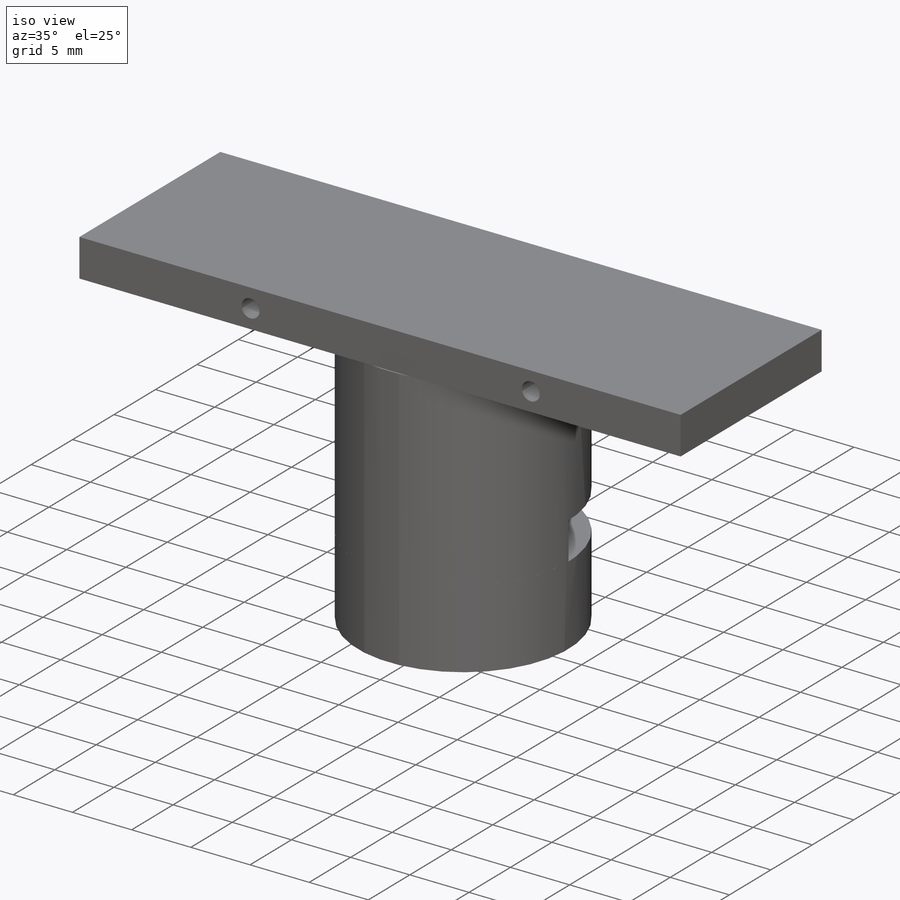
[diagram: iso view]
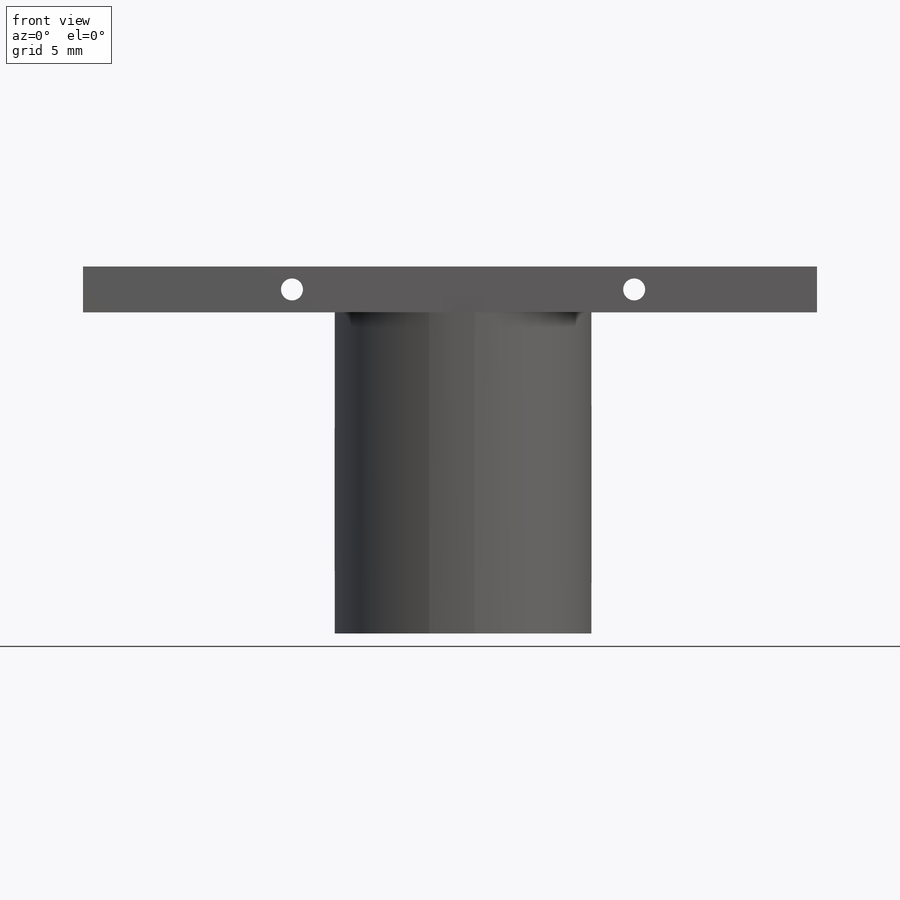
[diagram: front view]
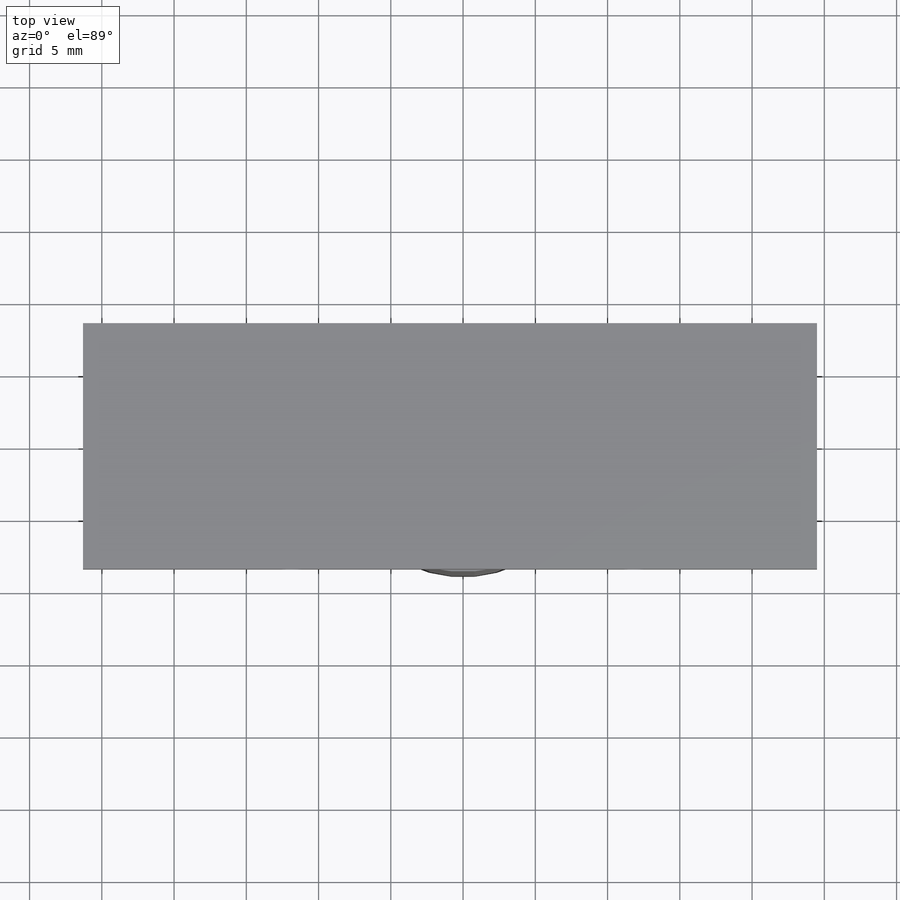
[diagram: top view]
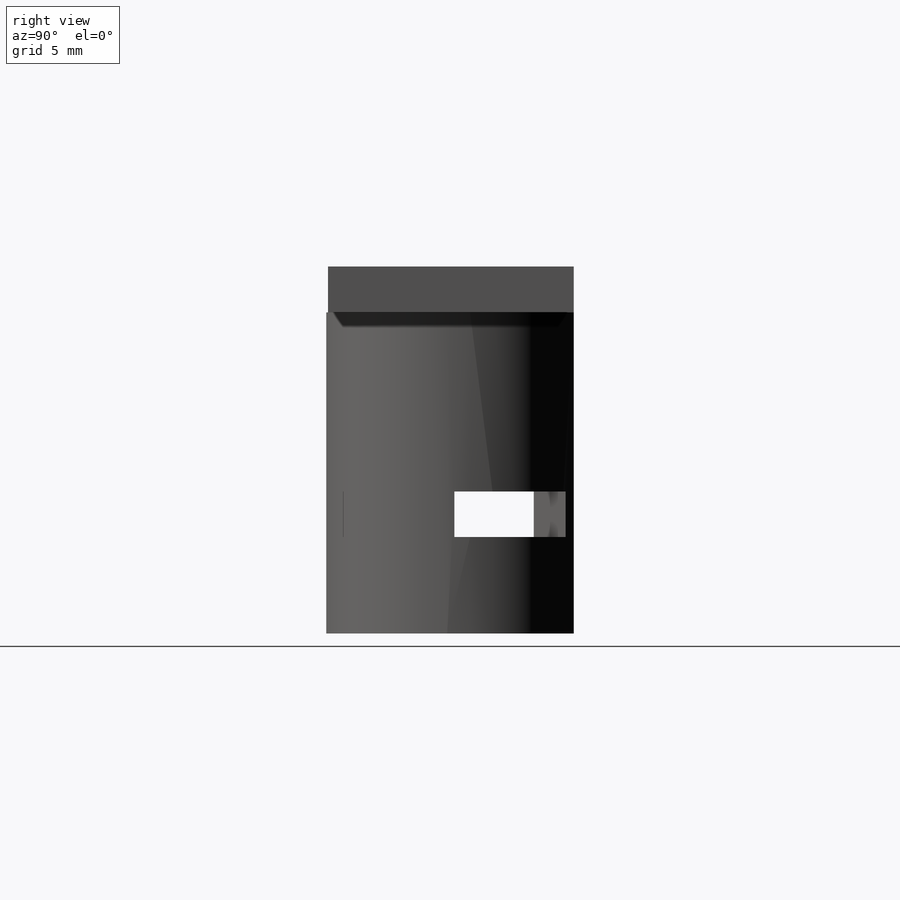
[diagram: right view]
SOLIDWORKS PART (.sldprt)
format: sldprt  version: not decoded by parser v0  size: 222,208 bytes
history: native  units: mm
features: sketch x6, extrude x3, cut_extrude x2, material x1, shell x1, plane x1, cut_revolve x1 (+12 scaffold rows collapsed)
feature tree (27):
  scaffold x12  (default folders/planes/origin — collapsed)
  material  "Material <not specified>"
  sketch  "Sketch1"  dims[D1=17.78mm]
  extrude  "Boss-Extrude2"  Depth=19.05mm
  sketch  "Sketch3"  dims[D1=17.78mm]
  shell  "Shell7"  Thickness=2.54mm
  extrude  "Boss-Extrude4"  Depth=3.175mm
  sketch  "Sketch4"  dims[c1.D2=17.78mm c1.D1=50.8mm c2.D2=~8.265928mm]
  extrude  "Boss-Extrude5"  Depth=3.175mm
  plane  "Plane3"  Offset=4.490128mm
  sketch  "Sketch5"  dims[c1.D1=8.255mm c1.D2=1.778mm c1.D3=1.575mm c1.D4=3.15mm c2.D2=3.81mm]
  cut_revolve  "Cut-Revolve1"  Angle=60deg
  sketch  "Sketch6"  dims[D3=1.524mm D4=1.524mm D1=5.08mm D2=5.08mm]
  cut_extrude  "Cut-Extrude1"  [1 undecoded]
  sketch  "Sketch7"  dims[D1=0.0mm]
  cut_extrude  "Cut-Extrude2"  [1 undecoded]
decode coverage: 11 of 13 modeling features carry decoded parameters
note: ~ marks probable driven/reference dimensions
note: 2 parameter values undecoded
note: suppression state not decoded; provenance and decode notes live in map.json
